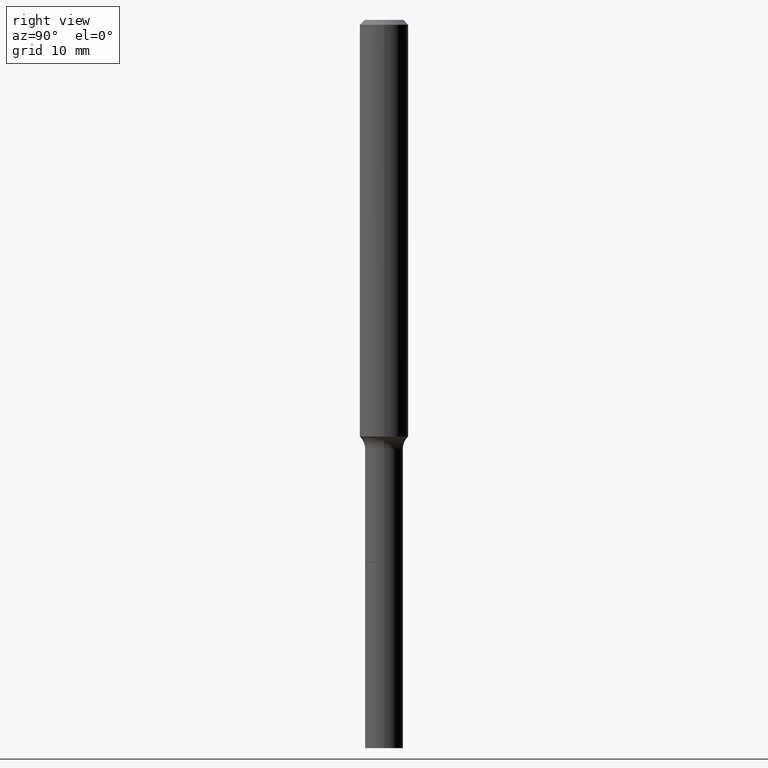
[diagram: clean part render]
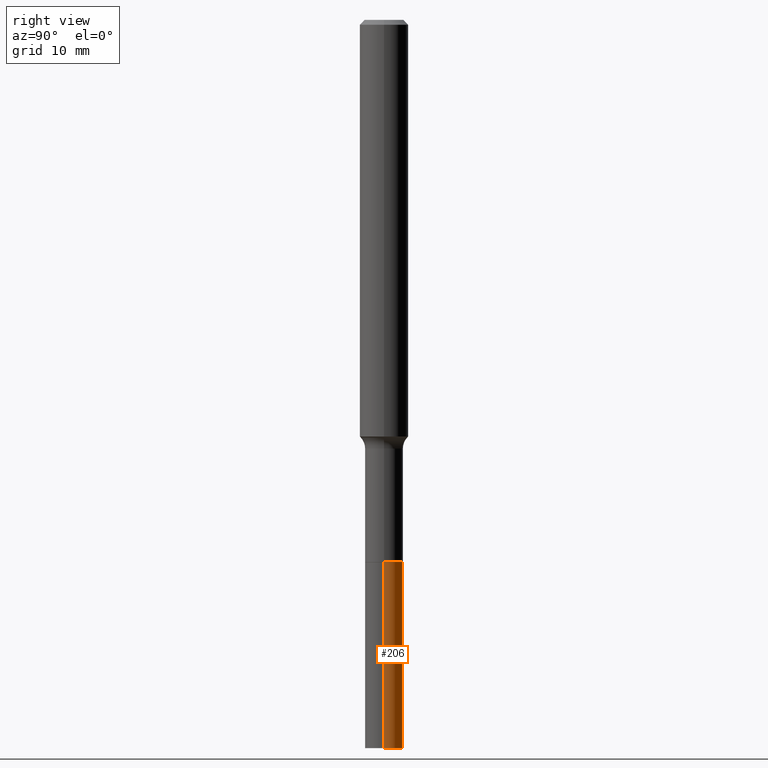
[diagram: same view with one face highlighted and labeled with its STEP entity id]
A machine part, right view. The second image highlights one B-rep face of the part: STEP entity #206.
In plain terms, the highlighted cylindrical surface (edge-blend (fillet) strip) has radius 2.3495 mm, axis along (-0, 0, 1).
Its self-contained STEP definition (entity closure, byte-faithful):
#6 = CARTESIAN_POINT ( 'NONE',  ( -0.09250000000000022093, -1.013421849151829643E-14, -3.543299999999999894 ) ) ;
#9 = AXIS2_PLACEMENT_3D ( 'NONE', #264, #67, #237 ) ;
#21 = VECTOR ( 'NONE', #23, 39.37007874015748143 ) ;
#23 = DIRECTION ( 'NONE',  ( -2.445468806185136877E-29, 3.491481338843145188E-15, 1.000000000000000000 ) ) ;
#41 = ORIENTED_EDGE ( 'NONE', *, *, #342, .F. ) ;
#46 = EDGE_CURVE ( 'NONE', #84, #366, #299, .T. ) ;
#67 = DIRECTION ( 'NONE',  ( -2.445468806185136597E-29, 3.491481338843145583E-15, 1.000000000000000000 ) ) ;
#79 = VERTEX_POINT ( 'NONE', #440 ) ;
#84 = VERTEX_POINT ( 'NONE', #6 ) ;
#91 = DIRECTION ( 'NONE',  ( 1.000000000000000000, -6.982962677686256455E-15, 0.000000000000000000 ) ) ;
#94 = ORIENTED_EDGE ( 'NONE', *, *, #221, .F. ) ;
#96 = VECTOR ( 'NONE', #488, 39.37007874015748143 ) ;
#97 = CIRCLE ( 'NONE', #9, 0.09250000000000022093 ) ;
#103 = CIRCLE ( 'NONE', #118, 0.09249999999999999889 ) ;
#118 = AXIS2_PLACEMENT_3D ( 'NONE', #262, #261, #134 ) ;
#132 = CARTESIAN_POINT ( 'NONE',  ( 6.451880351358246032E-29, -9.211575216269870974E-15, -2.638300000000000090 ) ) ;
#134 = DIRECTION ( 'NONE',  ( 1.000000000000000000, -6.982962677686265133E-15, 0.000000000000000000 ) ) ;
#175 = DIRECTION ( 'NONE',  ( -2.445468806185136597E-29, 3.491481338843145583E-15, 1.000000000000000000 ) ) ;
#199 = FACE_OUTER_BOUND ( 'NONE', #499, .T. ) ;
#206 = ADVANCED_FACE ( 'NONE', ( #199 ), #365, .T. ) ;
#221 = EDGE_CURVE ( 'NONE', #406, #79, #257, .T. ) ;
#237 = DIRECTION ( 'NONE',  ( 1.000000000000000000, -6.982962677686269077E-15, 0.000000000000000000 ) ) ;
#257 = LINE ( 'NONE', #300, #21 ) ;
#261 = DIRECTION ( 'NONE',  ( -2.445468806185136597E-29, 3.491481338843145583E-15, 1.000000000000000000 ) ) ;
#262 = CARTESIAN_POINT ( 'NONE',  ( 6.451880351358246032E-29, -9.211575216269870974E-15, -2.638300000000000090 ) ) ;
#264 = CARTESIAN_POINT ( 'NONE',  ( 8.665029620955794069E-29, -1.237136582792291707E-14, -3.543299999999999894 ) ) ;
#289 = ORIENTED_EDGE ( 'NONE', *, *, #510, .T. ) ;
#294 = AXIS2_PLACEMENT_3D ( 'NONE', #132, #175, #91 ) ;
#299 = LINE ( 'NONE', #461, #96 ) ;
#300 = CARTESIAN_POINT ( 'NONE',  ( 0.09250000000000010991, -9.857499263955849382E-15, -2.638300000000000090 ) ) ;
#312 = CARTESIAN_POINT ( 'NONE',  ( 0.09250000000000022093, -1.301728987560889706E-14, -3.543299999999999894 ) ) ;
#342 = EDGE_CURVE ( 'NONE', #79, #366, #103, .T. ) ;
#344 = CARTESIAN_POINT ( 'NONE',  ( -0.09249999999999999889, -1.013421849151830116E-14, -2.638300000000000090 ) ) ;
#365 = CYLINDRICAL_SURFACE ( 'NONE', #294, 0.09250000000000010991 ) ;
#366 = VERTEX_POINT ( 'NONE', #344 ) ;
#406 = VERTEX_POINT ( 'NONE', #312 ) ;
#440 = CARTESIAN_POINT ( 'NONE',  ( 0.09249999999999999889, -9.857499263955849382E-15, -2.638300000000000090 ) ) ;
#461 = CARTESIAN_POINT ( 'NONE',  ( -0.09250000000000010991, -8.554323185691776535E-15, -2.638300000000000090 ) ) ;
#488 = DIRECTION ( 'NONE',  ( -2.445468806185136877E-29, 3.491481338843145188E-15, 1.000000000000000000 ) ) ;
#499 = EDGE_LOOP ( 'NONE', ( #289, #502, #41, #94 ) ) ;
#502 = ORIENTED_EDGE ( 'NONE', *, *, #46, .T. ) ;
#510 = EDGE_CURVE ( 'NONE', #406, #84, #97, .T. ) ;